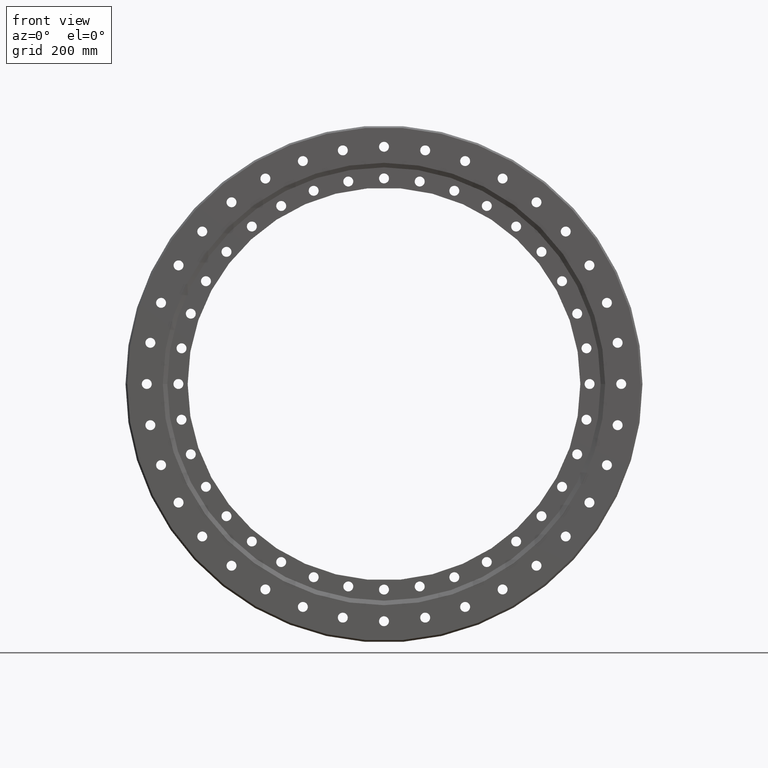
[diagram: clean part render]
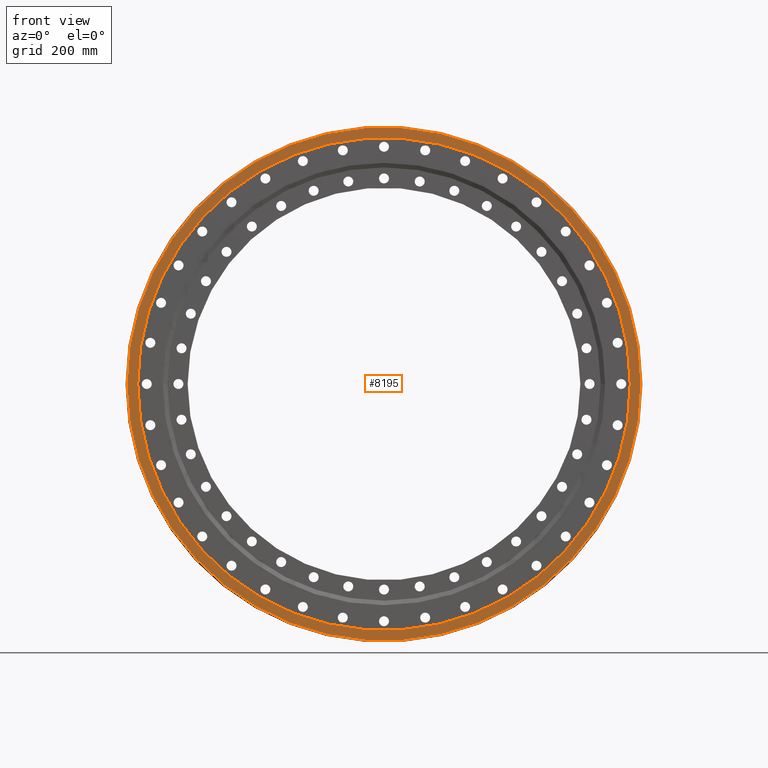
[diagram: same view with one face highlighted and labeled with its STEP entity id]
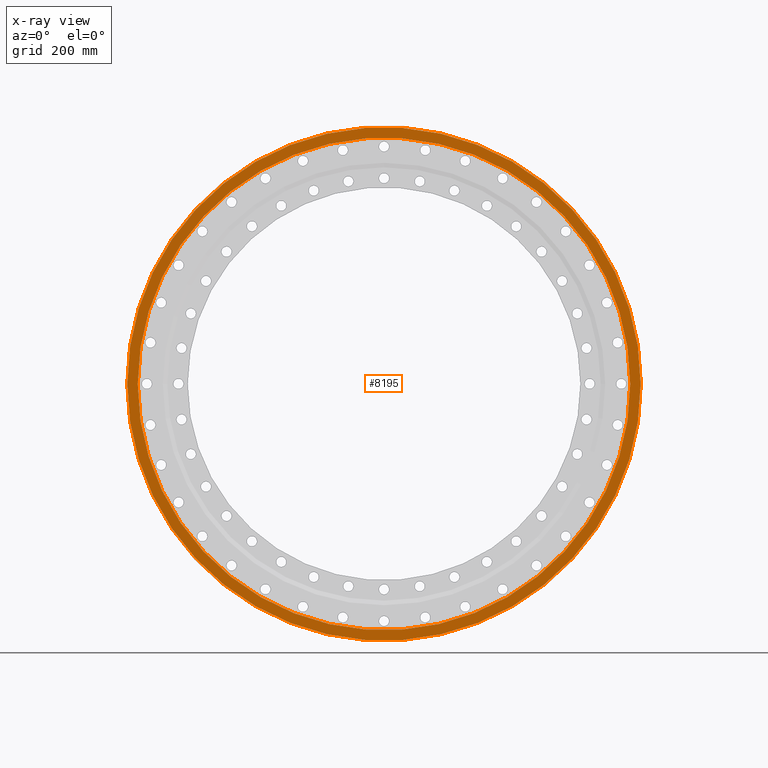
[diagram: x-ray of the same camera — body ghosted, the highlighted face saturated]
A machine part, front view. The second image highlights one B-rep face of the part: STEP entity #8195.
The next image is the same camera in x-ray: the body ghosted, the highlighted face saturated — about 0% of this face is hidden behind the body in this view.
In plain terms, the highlighted planar face has unit normal (0, -1, 0).
Its self-contained STEP definition (entity closure, byte-faithful):
#618 = EDGE_LOOP ( 'NONE', ( #4556, #2579 ) ) ;
#1307 = EDGE_CURVE ( 'NONE', #5548, #7655, #1385, .T. ) ;
#1385 = CIRCLE ( 'NONE', #3249, 568.0000000000000000 ) ;
#1528 = EDGE_CURVE ( 'NONE', #2381, #6273, #2020, .T. ) ;
#1529 = AXIS2_PLACEMENT_3D ( 'NONE', #6385, #6369, #6346 ) ;
#2020 = CIRCLE ( 'NONE', #2757, 544.9999999999998900 ) ;
#2381 = VERTEX_POINT ( 'NONE', #8113 ) ;
#2508 = EDGE_CURVE ( 'NONE', #6273, #2381, #5942, .T. ) ;
#2579 = ORIENTED_EDGE ( 'NONE', *, *, #2508, .T. ) ;
#2754 = FACE_BOUND ( 'NONE', #618, .T. ) ;
#2757 = AXIS2_PLACEMENT_3D ( 'NONE', #4636, #2902, #4616 ) ;
#2902 = DIRECTION ( 'NONE',  ( 0.0000000000000000000, 1.000000000000000000, 0.0000000000000000000 ) ) ;
#2978 = CARTESIAN_POINT ( 'NONE',  ( 0.0000000000000000000, -35.50000000000001400, 0.0000000000000000000 ) ) ;
#3013 = CARTESIAN_POINT ( 'NONE',  ( -568.0000000000000000, -35.50000000000001400, 0.0000000000000000000 ) ) ;
#3249 = AXIS2_PLACEMENT_3D ( 'NONE', #3925, #3945, #3841 ) ;
#3495 = CARTESIAN_POINT ( 'NONE',  ( 544.9999999999998900, -35.50000000000001400, 6.674325055353073100E-014 ) ) ;
#3625 = DIRECTION ( 'NONE',  ( 0.0000000000000000000, -1.000000000000000000, 0.0000000000000000000 ) ) ;
#3841 = DIRECTION ( 'NONE',  ( 1.000000000000000000, 0.0000000000000000000, 0.0000000000000000000 ) ) ;
#3925 = CARTESIAN_POINT ( 'NONE',  ( 0.0000000000000000000, -35.50000000000001400, 0.0000000000000000000 ) ) ;
#3945 = DIRECTION ( 'NONE',  ( 0.0000000000000000000, -1.000000000000000000, 0.0000000000000000000 ) ) ;
#4075 = EDGE_LOOP ( 'NONE', ( #6035, #7203 ) ) ;
#4471 = CIRCLE ( 'NONE', #8146, 568.0000000000000000 ) ;
#4556 = ORIENTED_EDGE ( 'NONE', *, *, #1528, .T. ) ;
#4616 = DIRECTION ( 'NONE',  ( -1.000000000000000000, 0.0000000000000000000, 0.0000000000000000000 ) ) ;
#4636 = CARTESIAN_POINT ( 'NONE',  ( 0.0000000000000000000, -35.50000000000001400, 0.0000000000000000000 ) ) ;
#4752 = EDGE_CURVE ( 'NONE', #7655, #5548, #4471, .T. ) ;
#4964 = CARTESIAN_POINT ( 'NONE',  ( 568.0000000000000000, -35.50000000000001400, 6.980486755139912300E-014 ) ) ;
#5548 = VERTEX_POINT ( 'NONE', #4964 ) ;
#5942 = CIRCLE ( 'NONE', #1529, 544.9999999999998900 ) ;
#6035 = ORIENTED_EDGE ( 'NONE', *, *, #4752, .T. ) ;
#6273 = VERTEX_POINT ( 'NONE', #3495 ) ;
#6346 = DIRECTION ( 'NONE',  ( -1.000000000000000000, 0.0000000000000000000, 0.0000000000000000000 ) ) ;
#6369 = DIRECTION ( 'NONE',  ( 0.0000000000000000000, 1.000000000000000000, 0.0000000000000000000 ) ) ;
#6385 = CARTESIAN_POINT ( 'NONE',  ( 0.0000000000000000000, -35.50000000000001400, 0.0000000000000000000 ) ) ;
#6436 = DIRECTION ( 'NONE',  ( 0.0000000000000000000, -1.000000000000000000, 0.0000000000000000000 ) ) ;
#6476 = DIRECTION ( 'NONE',  ( 1.000000000000000000, 0.0000000000000000000, 0.0000000000000000000 ) ) ;
#6625 = DIRECTION ( 'NONE',  ( 1.000000000000000000, 0.0000000000000000000, 0.0000000000000000000 ) ) ;
#7203 = ORIENTED_EDGE ( 'NONE', *, *, #1307, .T. ) ;
#7401 = PLANE ( 'NONE',  #7817 ) ;
#7655 = VERTEX_POINT ( 'NONE', #3013 ) ;
#7747 = CARTESIAN_POINT ( 'NONE',  ( -595.0000000000002300, -35.50000000000001400, 0.0000000000000000000 ) ) ;
#7817 = AXIS2_PLACEMENT_3D ( 'NONE', #7747, #6436, #6476 ) ;
#7915 = FACE_OUTER_BOUND ( 'NONE', #4075, .T. ) ;
#8113 = CARTESIAN_POINT ( 'NONE',  ( -544.9999999999998900, -35.50000000000001400, 0.0000000000000000000 ) ) ;
#8146 = AXIS2_PLACEMENT_3D ( 'NONE', #2978, #3625, #6625 ) ;
#8195 = ADVANCED_FACE ( 'NONE', ( #7915, #2754 ), #7401, .T. ) ;